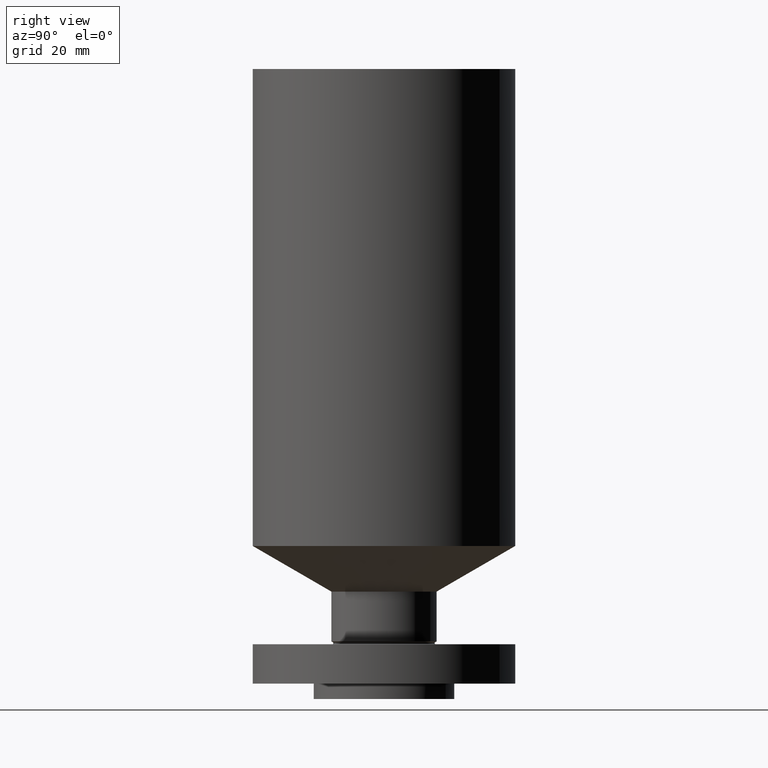
[diagram: clean part render]
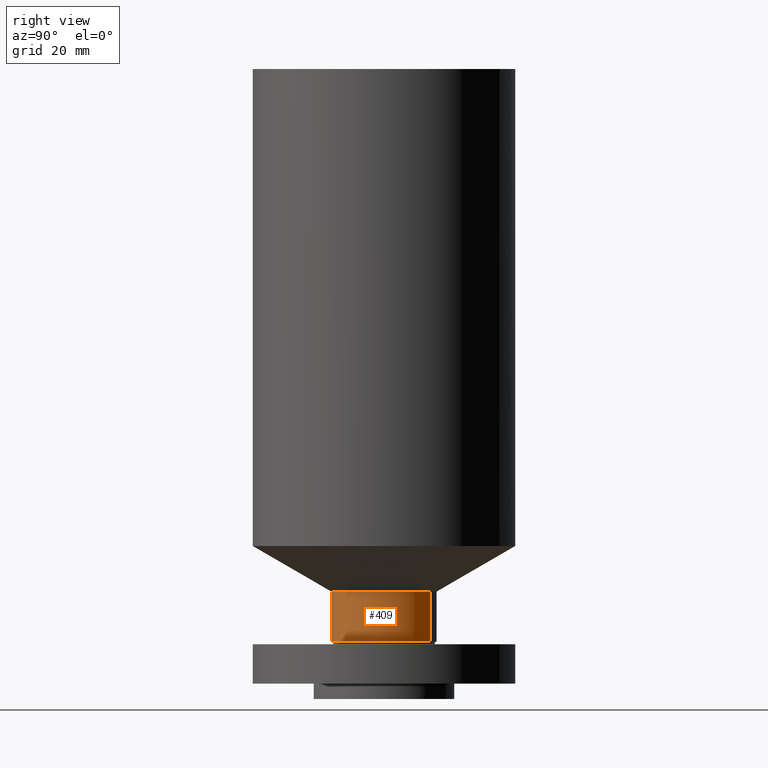
[diagram: same view with one face highlighted and labeled with its STEP entity id]
A machine part, right view. The second image highlights one B-rep face of the part: STEP entity #409.
In plain terms, the highlighted cylindrical surface (partial cylindrical patch) has radius 19.05 mm, axis along (0, 0, -1).
Its self-contained STEP definition (entity closure, byte-faithful):
#350=AXIS2_PLACEMENT_3D('Circle Axis2P3D',#348,#349,$) ;
#382=AXIS2_PLACEMENT_3D('Cylinder Axis2P3D',#379,#380,#381) ;
#393=AXIS2_PLACEMENT_3D('Circle Axis2P3D',#391,#392,$) ;
#345=CARTESIAN_POINT('Vertex',(0.359569153955,0.65818692142,0.600980762116)) ;
#348=CARTESIAN_POINT('Axis2P3D Location',(0.,0.,0.600980762116)) ;
#352=CARTESIAN_POINT('Vertex',(-0.359569153955,-0.65818692142,0.600980762116)) ;
#379=CARTESIAN_POINT('Axis2P3D Location',(0.,0.,4.26550000002)) ;
#384=CARTESIAN_POINT('Line Origine',(0.359569153955,0.65818692142,0.955490381061)) ;
#388=CARTESIAN_POINT('Vertex',(0.359569153955,0.65818692142,1.31000000001)) ;
#391=CARTESIAN_POINT('Axis2P3D Location',(0.,0.,1.31000000001)) ;
#395=CARTESIAN_POINT('Vertex',(-0.359569153955,-0.65818692142,1.31000000001)) ;
#398=CARTESIAN_POINT('Line Origine',(-0.359569153955,-0.65818692142,0.955490381061)) ;
#349=DIRECTION('Axis2P3D Direction',(-0.,0.,0.0393700787402)) ;
#380=DIRECTION('Axis2P3D Direction',(0.,0.,-0.0393700787402)) ;
#381=DIRECTION('Axis2P3D XDirection',(-0.0188750212049,-0.0345504945626,0.)) ;
#385=DIRECTION('Vector Direction',(0.,0.,-0.0393700787402)) ;
#392=DIRECTION('Axis2P3D Direction',(0.,0.,-0.0393700787402)) ;
#399=DIRECTION('Vector Direction',(0.,0.,-0.0393700787402)) ;
#386=VECTOR('Line Direction',#385,0.0393700787402) ;
#400=VECTOR('Line Direction',#399,0.0393700787402) ;
#404=ORIENTED_EDGE('',*,*,#354,.F.) ;
#405=ORIENTED_EDGE('',*,*,#390,.T.) ;
#406=ORIENTED_EDGE('',*,*,#397,.T.) ;
#407=ORIENTED_EDGE('',*,*,#402,.F.) ;
#409=ADVANCED_FACE('PartBody',(#408),#383,.T.) ;
#351=CIRCLE('generated circle',#350,0.750000000003) ;
#394=CIRCLE('generated circle',#393,0.750000000003) ;
#383=CYLINDRICAL_SURFACE('generated cylinder',#382,0.750000000003) ;
#354=EDGE_CURVE('',#346,#353,#351,.F.) ;
#390=EDGE_CURVE('',#346,#389,#387,.F.) ;
#397=EDGE_CURVE('',#389,#396,#394,.T.) ;
#402=EDGE_CURVE('',#353,#396,#401,.F.) ;
#403=EDGE_LOOP('',(#404,#405,#406,#407)) ;
#408=FACE_OUTER_BOUND('',#403,.T.) ;
#387=LINE('Line',#384,#386) ;
#401=LINE('Line',#398,#400) ;
#346=VERTEX_POINT('',#345) ;
#353=VERTEX_POINT('',#352) ;
#389=VERTEX_POINT('',#388) ;
#396=VERTEX_POINT('',#395) ;